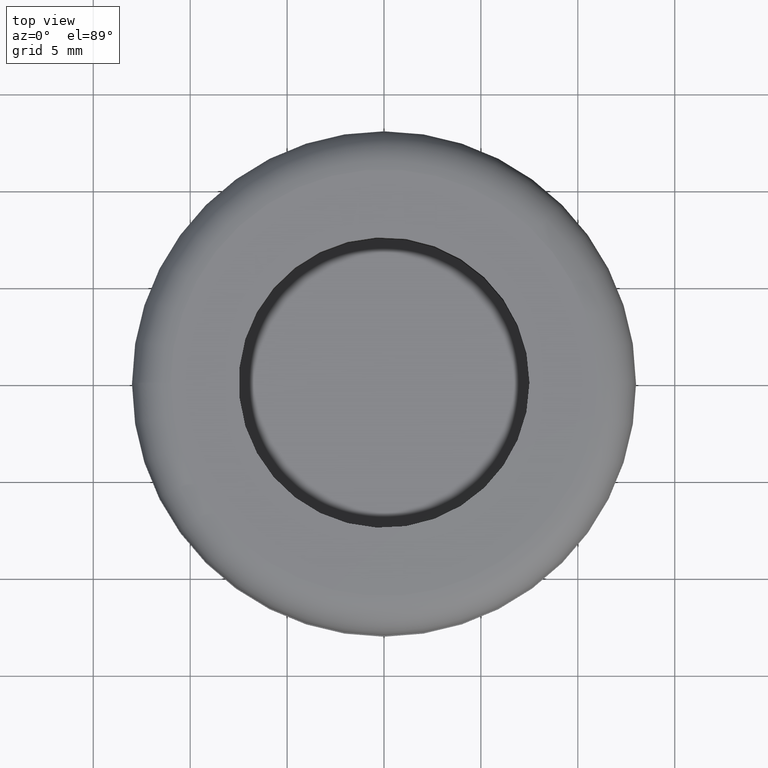
[diagram: clean part render]
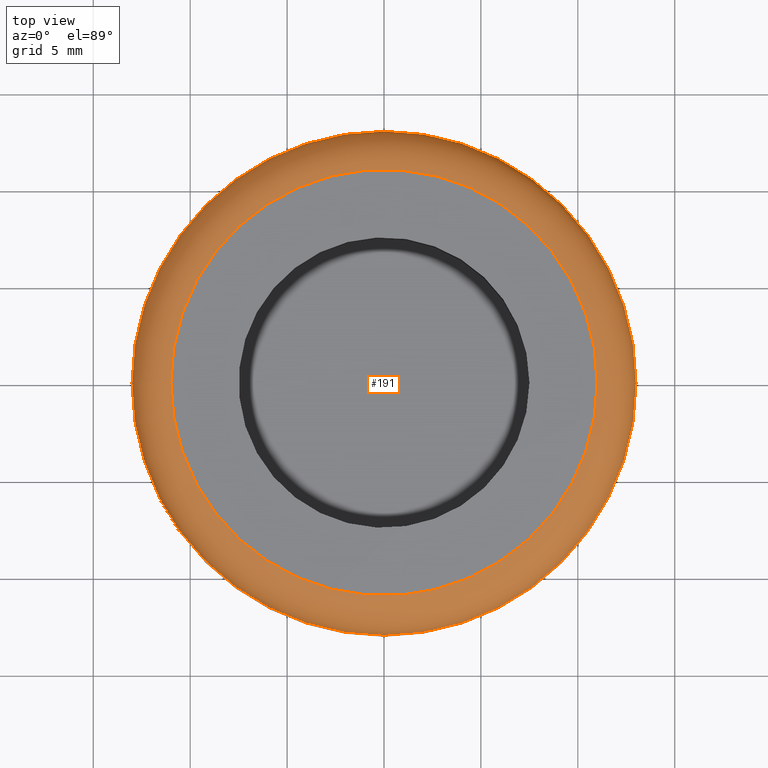
[diagram: same view with one face highlighted and labeled with its STEP entity id]
A machine part, top view. The second image highlights one B-rep face of the part: STEP entity #191.
In plain terms, the highlighted toroidal blend (fillet) surface has major radius 11 mm and minor (blend) radius 2 mm.
Its self-contained STEP definition (entity closure, byte-faithful):
#20=TOROIDAL_SURFACE('',#233,11.,2.);
#42=FACE_OUTER_BOUND('',#56,.T.);
#56=EDGE_LOOP('',(#146,#147,#148,#149,#150,#151));
#75=CIRCLE('',#234,11.);
#76=CIRCLE('',#235,2.);
#77=CIRCLE('',#236,13.);
#78=CIRCLE('',#237,13.);
#79=CIRCLE('',#238,11.);
#94=VERTEX_POINT('',#351);
#95=VERTEX_POINT('',#352);
#96=VERTEX_POINT('',#354);
#97=VERTEX_POINT('',#356);
#115=EDGE_CURVE('',#94,#95,#75,.T.);
#116=EDGE_CURVE('',#95,#96,#76,.T.);
#117=EDGE_CURVE('',#96,#97,#77,.T.);
#118=EDGE_CURVE('',#97,#96,#78,.T.);
#119=EDGE_CURVE('',#95,#94,#79,.T.);
#146=ORIENTED_EDGE('',*,*,#115,.T.);
#147=ORIENTED_EDGE('',*,*,#116,.T.);
#148=ORIENTED_EDGE('',*,*,#117,.T.);
#149=ORIENTED_EDGE('',*,*,#118,.T.);
#150=ORIENTED_EDGE('',*,*,#116,.F.);
#151=ORIENTED_EDGE('',*,*,#119,.T.);
#191=ADVANCED_FACE('',(#42),#20,.T.);
#233=AXIS2_PLACEMENT_3D('',#350,#285,#286);
#234=AXIS2_PLACEMENT_3D('',#353,#287,#288);
#235=AXIS2_PLACEMENT_3D('',#355,#289,#290);
#236=AXIS2_PLACEMENT_3D('',#357,#291,#292);
#237=AXIS2_PLACEMENT_3D('',#358,#293,#294);
#238=AXIS2_PLACEMENT_3D('',#359,#295,#296);
#285=DIRECTION('center_axis',(0.,0.,1.));
#286=DIRECTION('ref_axis',(1.,0.,0.));
#287=DIRECTION('center_axis',(0.,0.,-1.));
#288=DIRECTION('ref_axis',(-1.,0.,0.));
#289=DIRECTION('center_axis',(1.22464679914735E-16,-1.,0.));
#290=DIRECTION('ref_axis',(-1.,-1.22464679914735E-16,0.));
#291=DIRECTION('center_axis',(0.,0.,1.));
#292=DIRECTION('ref_axis',(-1.,0.,0.));
#293=DIRECTION('center_axis',(0.,0.,1.));
#294=DIRECTION('ref_axis',(-1.,0.,0.));
#295=DIRECTION('center_axis',(0.,0.,-1.));
#296=DIRECTION('ref_axis',(-1.,0.,0.));
#350=CARTESIAN_POINT('Origin',(0.,0.,2.25));
#351=CARTESIAN_POINT('',(11.,-1.34711147906209E-15,4.25));
#352=CARTESIAN_POINT('',(-11.,-1.34711147906209E-15,4.25));
#353=CARTESIAN_POINT('Origin',(0.,0.,4.25));
#354=CARTESIAN_POINT('',(-13.,-1.59204083889156E-15,2.25));
#355=CARTESIAN_POINT('Origin',(-11.,-1.34711147906209E-15,2.25));
#356=CARTESIAN_POINT('',(13.,1.59204083889156E-15,2.25));
#357=CARTESIAN_POINT('Origin',(0.,0.,2.25));
#358=CARTESIAN_POINT('Origin',(0.,0.,2.25));
#359=CARTESIAN_POINT('Origin',(0.,0.,4.25));